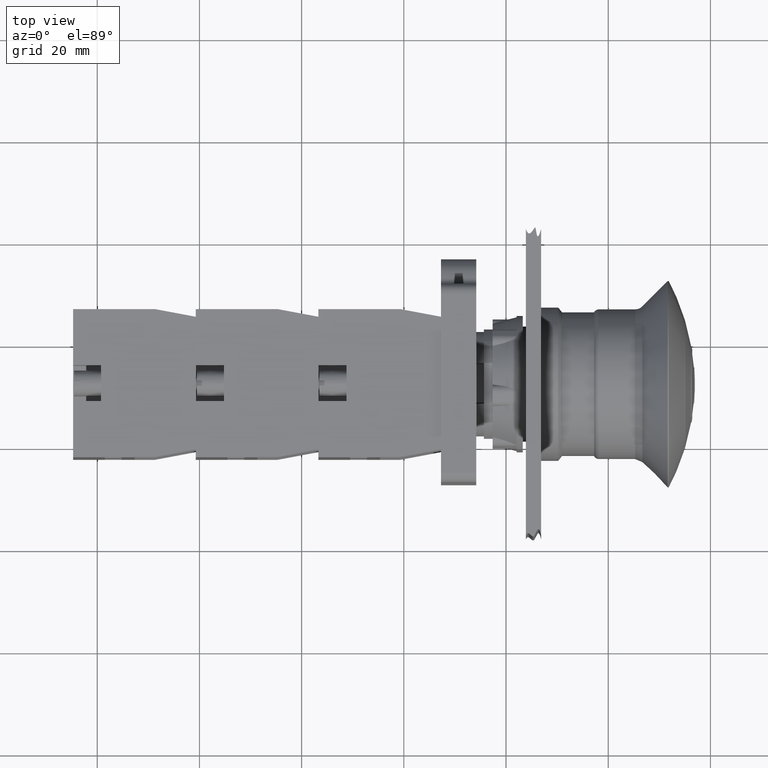
[diagram: clean part render]
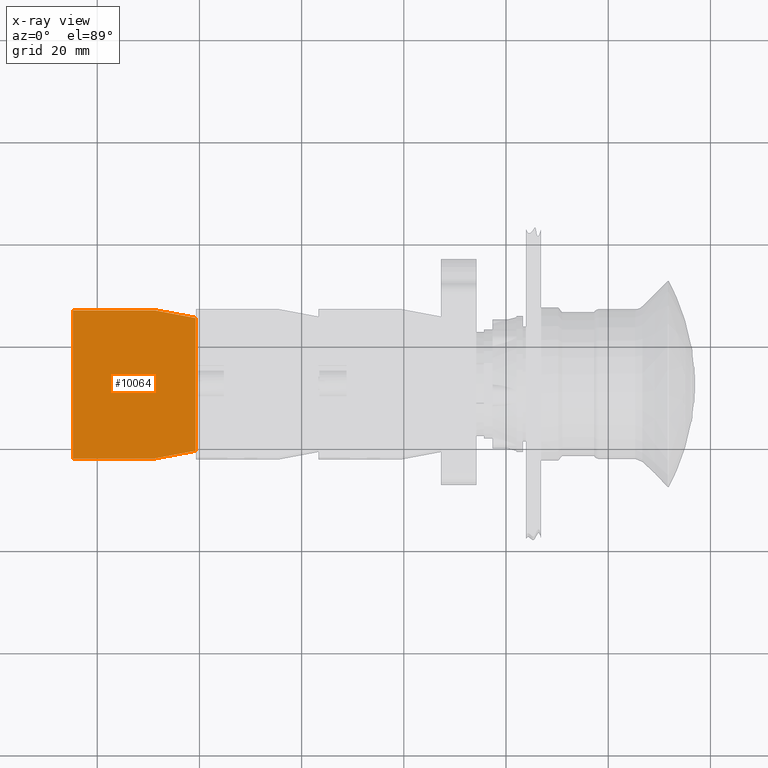
[diagram: x-ray — body ghosted, one internal face saturated and labeled with its STEP entity id]
A machine part, top view, then the same camera in x-ray: the body is ghosted and one INTERNAL B-rep face — a face not visible from any outside direction — is saturated and labeled: STEP entity #10064.
In plain terms, the highlighted planar face has unit normal (-0, -0, 1).
Its self-contained STEP definition (entity closure, byte-faithful):
#8369=CARTESIAN_POINT('',(-44.936741828918471,23.797073323279623,0.0));
#8370=VERTEX_POINT('',#8369);
#8377=CARTESIAN_POINT('',(-44.936741828918457,7.797073323279626,0.0));
#8378=VERTEX_POINT('',#8377);
#8379=CARTESIAN_POINT('',(-44.936741828918457,7.797073323279626,0.0));
#8380=DIRECTION('',(0.0,1.0,0.0));
#8381=VECTOR('',#8380,15.999999999999996);
#8382=LINE('',#8379,#8381);
#8383=EDGE_CURVE('',#8378,#8370,#8382,.T.);
#8560=CARTESIAN_POINT('',(-43.436741828918457,-0.202926676720380,0.0));
#8561=VERTEX_POINT('',#8560);
#8568=CARTESIAN_POINT('',(-17.436741828918457,-0.202926676720377,0.0));
#8569=VERTEX_POINT('',#8568);
#8570=CARTESIAN_POINT('',(-17.436741828918457,-0.202926676720377,0.0));
#8571=DIRECTION('',(-1.0,0.0,0.0));
#8572=VECTOR('',#8571,26.0);
#8573=LINE('',#8570,#8572);
#8574=EDGE_CURVE('',#8569,#8561,#8573,.T.);
#9918=CARTESIAN_POINT('',(-15.936741828918466,23.797073323279626,0.0));
#9919=VERTEX_POINT('',#9918);
#9926=CARTESIAN_POINT('',(-44.936741828918471,23.797073323279623,0.0));
#9927=DIRECTION('',(1.0,0.0,0.0));
#9928=VECTOR('',#9927,29.000000000000007);
#9929=LINE('',#9926,#9928);
#9930=EDGE_CURVE('',#8370,#9919,#9929,.T.);
#9966=CARTESIAN_POINT('',(-15.936741828918466,7.797073323279626,0.0));
#9967=VERTEX_POINT('',#9966);
#9974=CARTESIAN_POINT('',(-15.936741828918466,23.797073323279626,0.0));
#9975=DIRECTION('',(0.0,-1.0,0.0));
#9976=VECTOR('',#9975,16.0);
#9977=LINE('',#9974,#9976);
#9978=EDGE_CURVE('',#9919,#9967,#9977,.T.);
#10006=CARTESIAN_POINT('',(-15.936741828918466,7.797073323279626,0.0));
#10007=DIRECTION('',(-0.184288535050184,-0.982872186934322,0.0));
#10008=VECTOR('',#10007,8.139410298049855);
#10009=LINE('',#10006,#10008);
#10010=EDGE_CURVE('',#9967,#8569,#10009,.T.);
#10023=CARTESIAN_POINT('',(-43.436741828918457,-0.202926676720380,0.0));
#10024=DIRECTION('',(-0.184288535050185,0.982872186934322,0.0));
#10025=VECTOR('',#10024,8.139410298049860);
#10026=LINE('',#10023,#10025);
#10027=EDGE_CURVE('',#8561,#8378,#10026,.T.);
#10051=CARTESIAN_POINT('',(-30.436741828918464,12.124046801833057,0.0));
#10052=DIRECTION('',(0.0,0.0,1.0));
#10053=DIRECTION('',(1.0,0.0,0.0));
#10054=AXIS2_PLACEMENT_3D('',#10051,#10052,#10053);
#10055=PLANE('',#10054);
#10056=ORIENTED_EDGE('',*,*,#9930,.T.);
#10057=ORIENTED_EDGE('',*,*,#9978,.T.);
#10058=ORIENTED_EDGE('',*,*,#10010,.T.);
#10059=ORIENTED_EDGE('',*,*,#8574,.T.);
#10060=ORIENTED_EDGE('',*,*,#10027,.T.);
#10061=ORIENTED_EDGE('',*,*,#8383,.T.);
#10062=EDGE_LOOP('',(#10056,#10057,#10058,#10059,#10060,#10061));
#10063=FACE_OUTER_BOUND('',#10062,.T.);
#10064=ADVANCED_FACE('',(#10063),#10055,.F.);